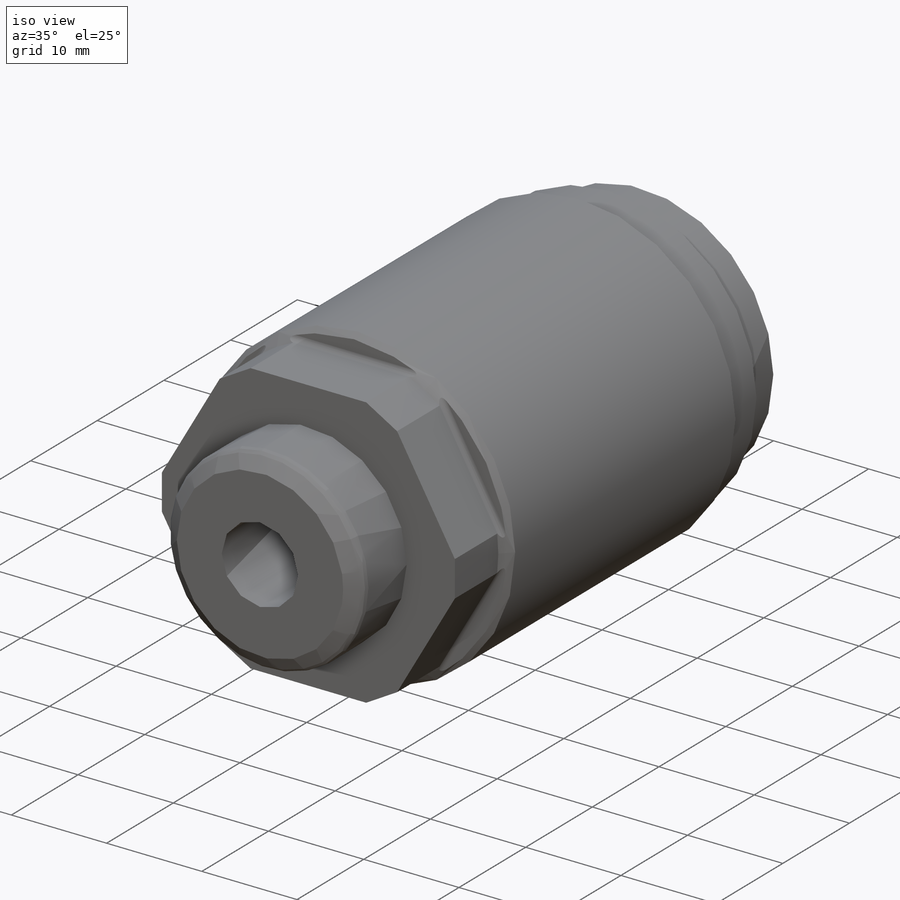
[diagram: iso view]
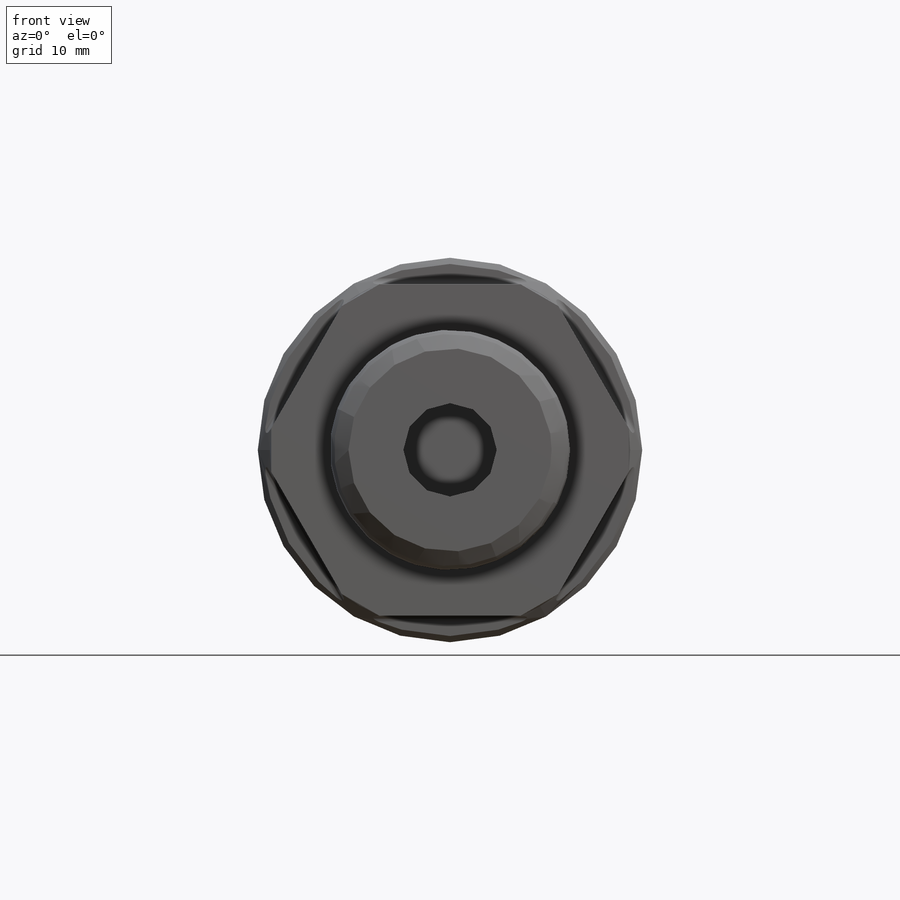
[diagram: front view]
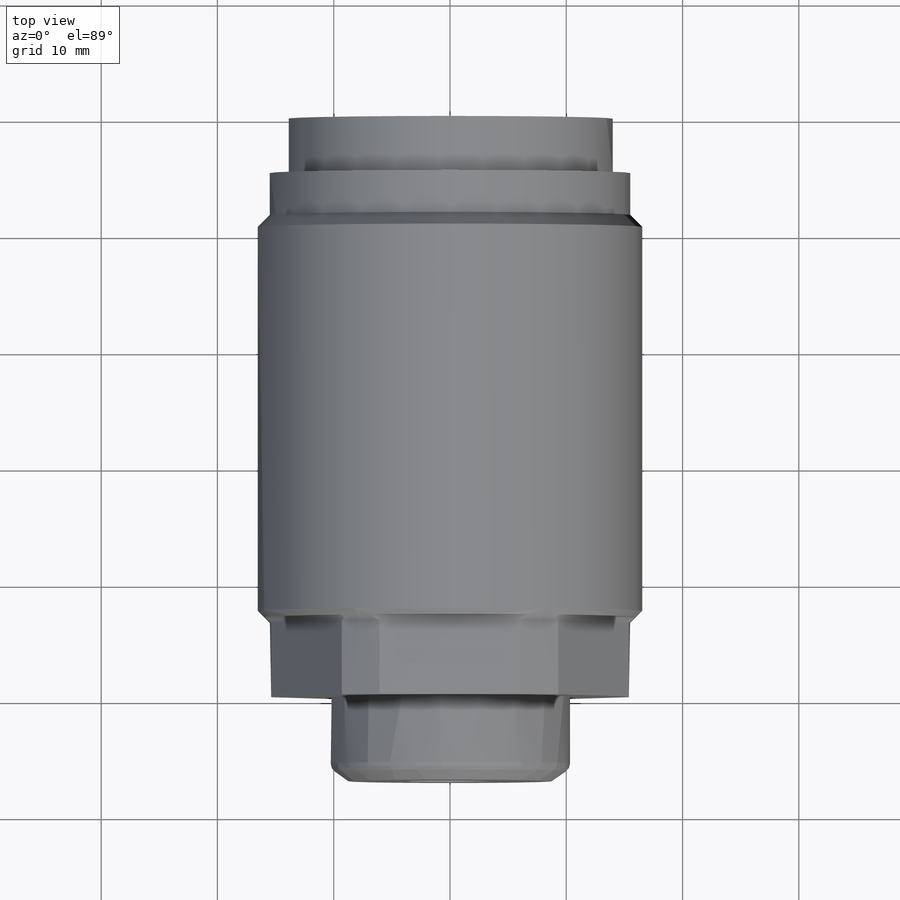
[diagram: top view]
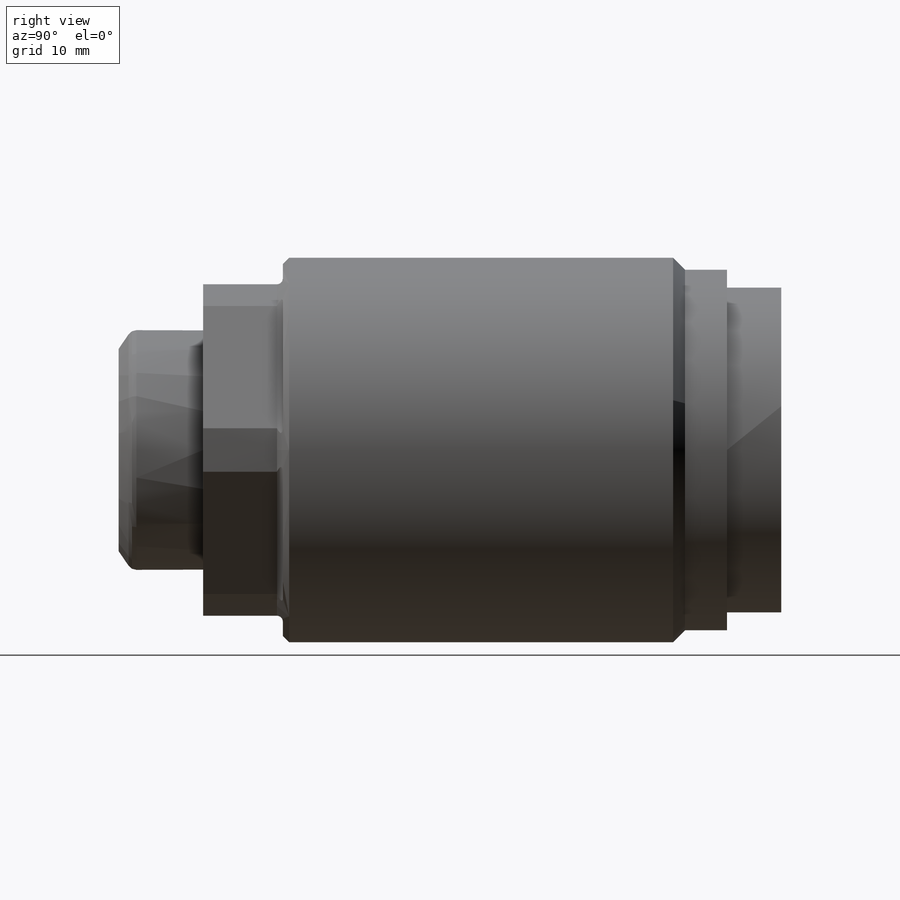
[diagram: right view]
SOLIDWORKS PART (.sldprt)
format: sldprt  version: not decoded by parser v0  size: 270,848 bytes
history: native  units: mm
features: plane x8, sketch x8, cut_revolve x5, material x1, extrude x1, cut_extrude x1, revolve x1, pattern_circular x1 (+13 scaffold rows collapsed)
feature tree (39):
  scaffold x13  (default folders/planes/origin — collapsed)
  material  "Alloy Steel"
  plane  "Plane1"
  sketch  "Sketch1"
  extrude  "Extrude1"  Depth=49.7332mm
  plane  "Plane2"
  sketch  "Sketch2"  dims[D2=0.508mm D1=28.5115mm D3=6.858mm]
  cut_extrude  "Cut-Extrude1"  Depth=39.68496mm
  plane  "Plane12"
  sketch  "Sketch10"  dims[c1.D1=30.988mm c1.D2=1.0414mm c2.D2=45.0deg c2.D3=6.35mm]
  cut_revolve  "Cut-Revolve1"  Angle=360deg
  plane  "Plane13"
  sketch  "Sketch11"  dims[c1.D1=31.0134mm c1.D2=8.2804mm c1.D3=1.0287mm c2.D3=45.0deg]
  cut_revolve  "Cut-Revolve2"  Angle=360deg
  plane  "Plane14"
  sketch  "Sketch12"  dims[D1=27.9908mm D2=4.6736mm]
  cut_revolve  "Cut-Revolve3"  Angle=360deg
  plane  "Plane15"
  sketch  "Sketch13"  dims[D1=7.2644mm D2=20.6502mm]
  revolve  "Revolve1"  Angle=360deg
  plane  "Plane16"
  sketch  "S2D0011"  dims[D1=8.0264mm D2=9.652mm]
  cut_revolve  "Cut-Revolve4"  Angle=360deg
  plane  "Plane17"
  sketch  "Sketch15"  dims[D3=0.8128mm D1=17.4752mm D2=1.524mm]
  cut_revolve  "Cut-Revolve5"  Angle=360deg
  pattern_circular  "CirPattern2"  Count=6 Angle=360deg
decode coverage: 16 of 17 modeling features carry decoded parameters
note: suppression state not decoded; provenance and decode notes live in map.json
